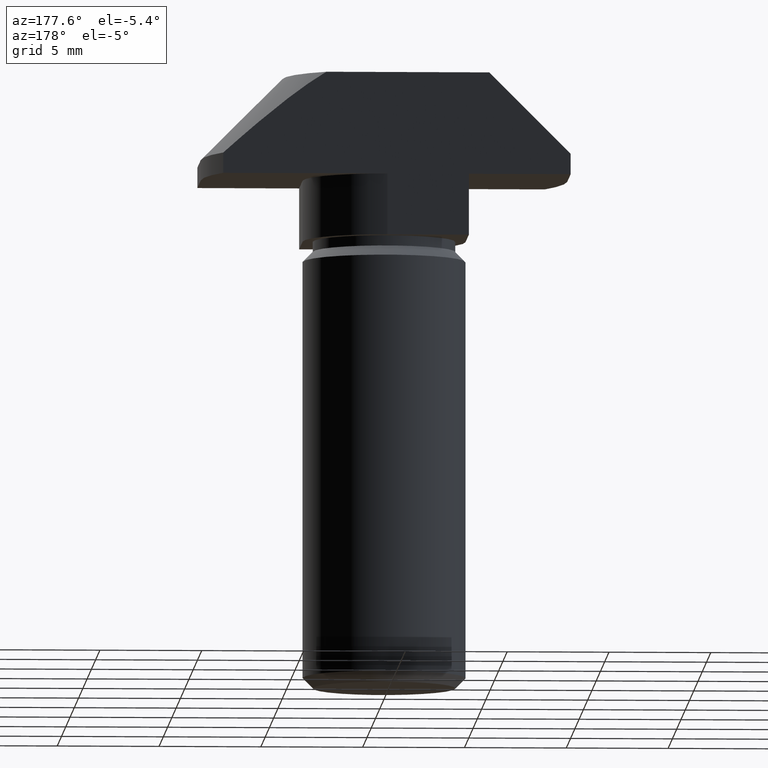
[diagram: clean part render]
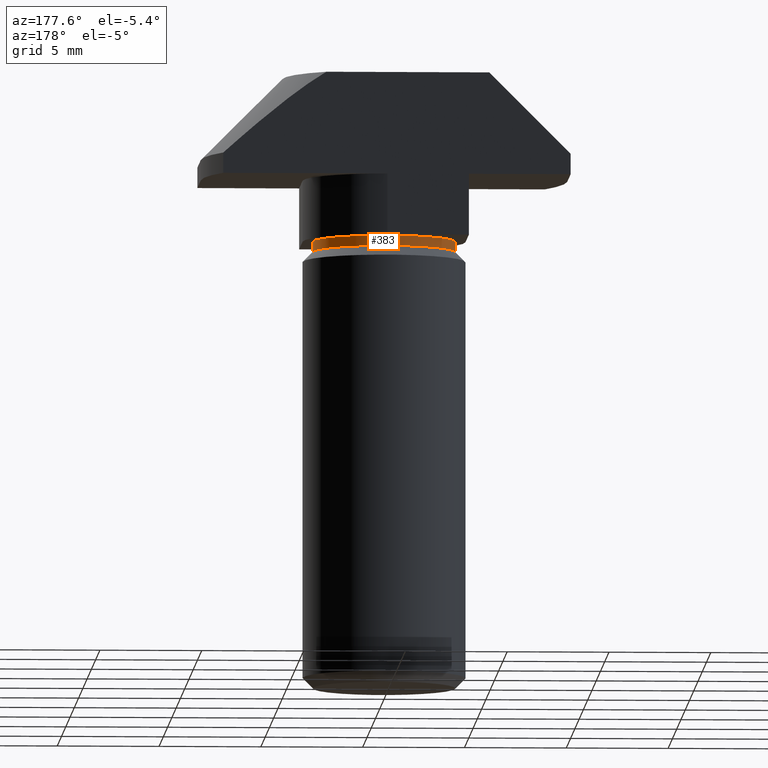
[diagram: same view with one face highlighted and labeled with its STEP entity id]
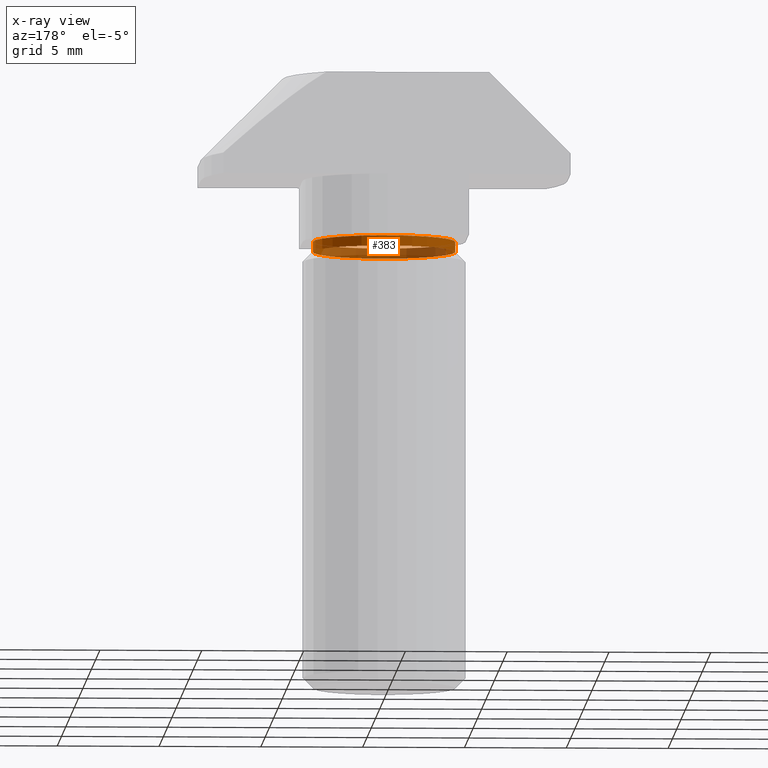
[diagram: x-ray of the same camera — body ghosted, the highlighted face saturated]
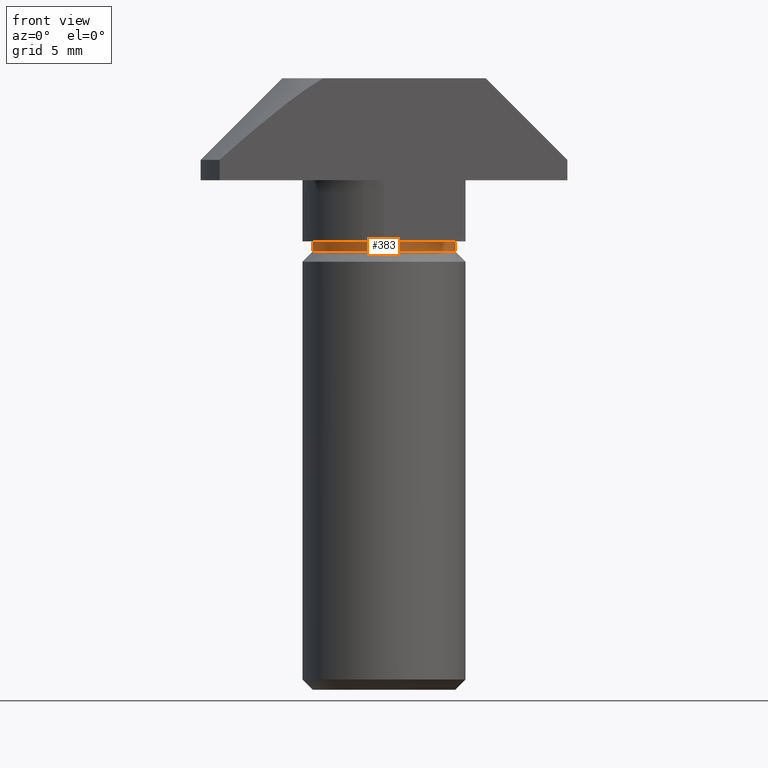
[diagram: same view with one face highlighted and labeled with its STEP entity id]
A machine part, auxiliary view. The second image highlights one B-rep face of the part: STEP entity #383.
The next image is the same camera in x-ray: the body ghosted, the highlighted face saturated — about 44% of this face is hidden behind the body in this view.
A second angle (front view) of the same face is appended — the face is thin or edge-on in the first view.
In plain terms, the highlighted cylindrical surface (bore or boss wall) has radius 3.5 mm, axis along (0, 0, -1).
Its self-contained STEP definition (entity closure, byte-faithful):
#32=CYLINDRICAL_SURFACE('',#433,3.5);
#41=FACE_OUTER_BOUND('',#64,.T.);
#64=EDGE_LOOP('',(#278,#279,#280,#281));
#87=LINE('',#597,#125);
#125=VECTOR('',#486,3.5);
#160=CIRCLE('',#426,3.5);
#164=CIRCLE('',#434,3.5);
#175=VERTEX_POINT('',#581);
#179=VERTEX_POINT('',#596);
#210=EDGE_CURVE('',#175,#175,#160,.T.);
#217=EDGE_CURVE('',#175,#179,#87,.T.);
#218=EDGE_CURVE('',#179,#179,#164,.T.);
#278=ORIENTED_EDGE('',*,*,#210,.F.);
#279=ORIENTED_EDGE('',*,*,#217,.T.);
#280=ORIENTED_EDGE('',*,*,#218,.F.);
#281=ORIENTED_EDGE('',*,*,#217,.F.);
#383=ADVANCED_FACE('',(#41),#32,.T.);
#426=AXIS2_PLACEMENT_3D('',#582,#467,#468);
#433=AXIS2_PLACEMENT_3D('',#595,#484,#485);
#434=AXIS2_PLACEMENT_3D('',#598,#487,#488);
#467=DIRECTION('center_axis',(0.,0.,-1.));
#468=DIRECTION('ref_axis',(1.,0.,0.));
#484=DIRECTION('center_axis',(0.,0.,-1.));
#485=DIRECTION('ref_axis',(1.,0.,0.));
#486=DIRECTION('',(0.,0.,1.));
#487=DIRECTION('center_axis',(0.,0.,1.));
#488=DIRECTION('ref_axis',(1.,0.,0.));
#581=CARTESIAN_POINT('',(-3.5,4.28626379701574E-16,-8.5));
#582=CARTESIAN_POINT('Origin',(0.,0.,-8.5));
#595=CARTESIAN_POINT('Origin',(0.,0.,-8.));
#596=CARTESIAN_POINT('',(-3.5,4.28626379701574E-16,-8.));
#597=CARTESIAN_POINT('',(-3.5,4.28626379701574E-16,-8.));
#598=CARTESIAN_POINT('Origin',(0.,0.,-8.));